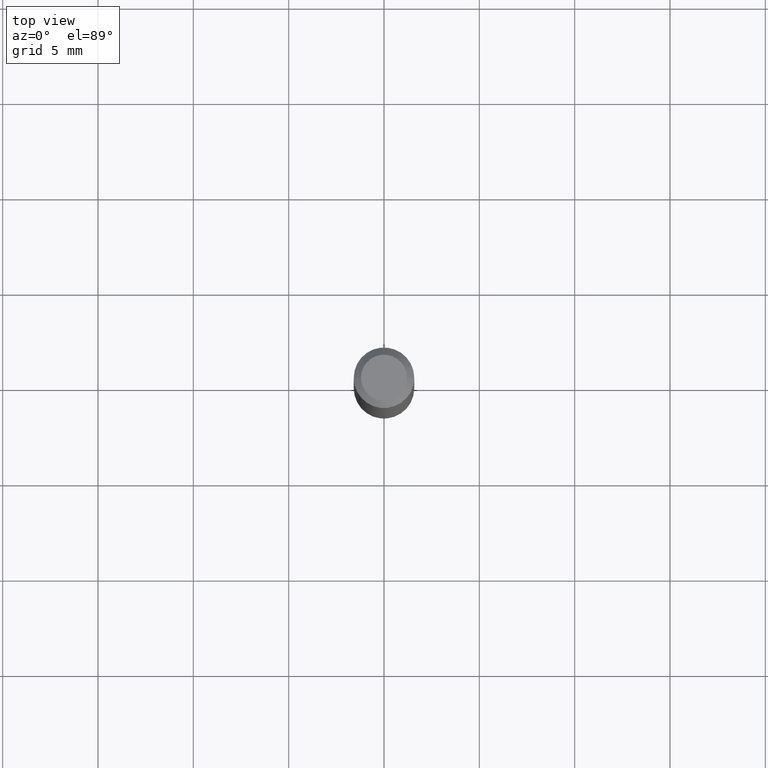
[diagram: clean part render]
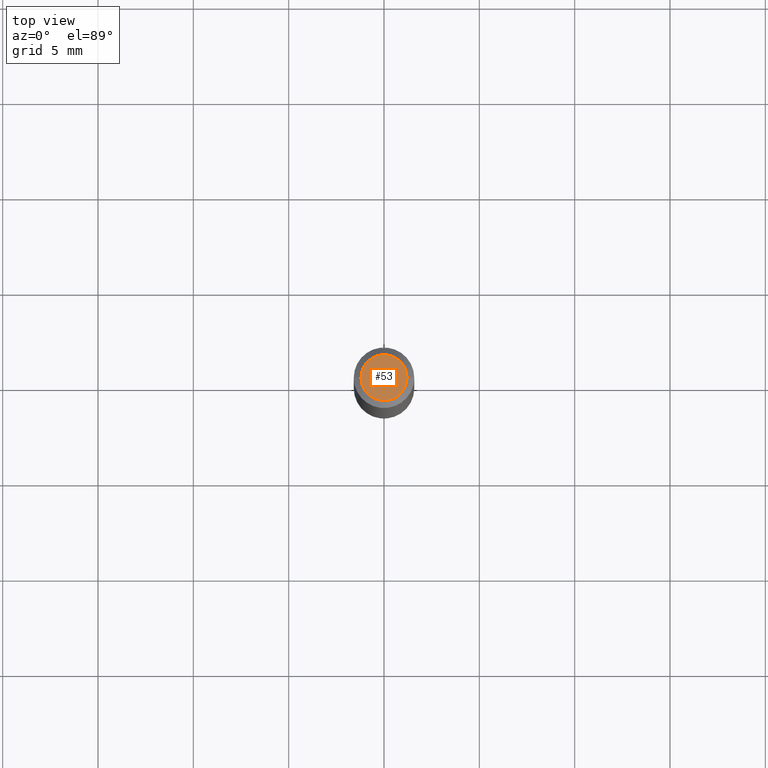
[diagram: same view with one face highlighted and labeled with its STEP entity id]
A machine part, top view. The second image highlights one B-rep face of the part: STEP entity #53.
In plain terms, the highlighted planar face has unit normal (0, -0, -1).
Its self-contained STEP definition (entity closure, byte-faithful):
#29 = DIRECTION ( 'NONE',  ( 1.000000000000000000, -6.982962677686267499E-15, 5.108144071313017768E-29 ) ) ;
#52 = AXIS2_PLACEMENT_3D ( 'NONE', #284, #425, #29 ) ;
#53 = ADVANCED_FACE ( 'NONE', ( #411 ), #84, .F. ) ;
#72 = AXIS2_PLACEMENT_3D ( 'NONE', #378, #121, #91 ) ;
#84 = PLANE ( 'NONE',  #72 ) ;
#91 = DIRECTION ( 'NONE',  ( -1.000000000000000000, 6.982962677686265922E-15, -4.876176775795935793E-29 ) ) ;
#121 = DIRECTION ( 'NONE',  ( 2.438088387897960049E-29, -3.491481338843145188E-15, -1.000000000000000000 ) ) ;
#148 = CIRCLE ( 'NONE', #406, 0.04749999999999999362 ) ;
#167 = ORIENTED_EDGE ( 'NONE', *, *, #358, .T. ) ;
#194 = CARTESIAN_POINT ( 'NONE',  ( -4.460165479722938536E-44, 6.367934238710582481E-30, 1.823848854028390842E-15 ) ) ;
#207 = VERTEX_POINT ( 'NONE', #217 ) ;
#217 = CARTESIAN_POINT ( 'NONE',  ( 0.04749999999999999362, -4.035134999187546083E-16, 1.823848854028393603E-15 ) ) ;
#228 = DIRECTION ( 'NONE',  ( -2.445468806185136597E-29, 3.491481338843145583E-15, 1.000000000000000000 ) ) ;
#242 = CARTESIAN_POINT ( 'NONE',  ( -0.04749999999999999362, 3.578768372314242553E-16, 1.823848854028388475E-15 ) ) ;
#284 = CARTESIAN_POINT ( 'NONE',  ( -4.460165479722938536E-44, 6.367934238710582481E-30, 1.823848854028390842E-15 ) ) ;
#300 = VERTEX_POINT ( 'NONE', #242 ) ;
#305 = ORIENTED_EDGE ( 'NONE', *, *, #402, .T. ) ;
#306 = DIRECTION ( 'NONE',  ( 1.000000000000000000, -6.982962677686267499E-15, 5.108144071313017768E-29 ) ) ;
#351 = EDGE_LOOP ( 'NONE', ( #167, #305 ) ) ;
#358 = EDGE_CURVE ( 'NONE', #300, #207, #451, .T. ) ;
#378 = CARTESIAN_POINT ( 'NONE',  ( 3.316907271900976096E-16, 0.04749999999999999362, 7.460790634191459752E-16 ) ) ;
#402 = EDGE_CURVE ( 'NONE', #207, #300, #148, .T. ) ;
#406 = AXIS2_PLACEMENT_3D ( 'NONE', #194, #228, #306 ) ;
#411 = FACE_OUTER_BOUND ( 'NONE', #351, .T. ) ;
#425 = DIRECTION ( 'NONE',  ( -2.445468806185136597E-29, 3.491481338843145583E-15, 1.000000000000000000 ) ) ;
#451 = CIRCLE ( 'NONE', #52, 0.04749999999999999362 ) ;